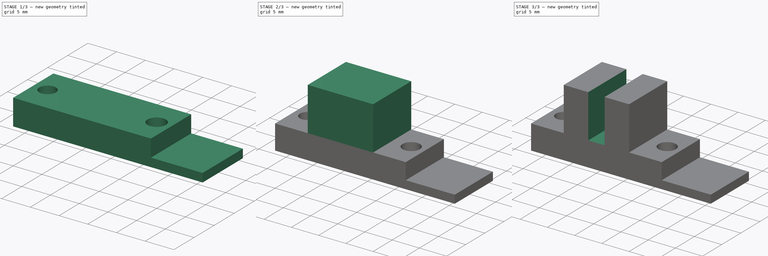
[diagram: build sequence overview — one tinted view per stage of 3, left to right]
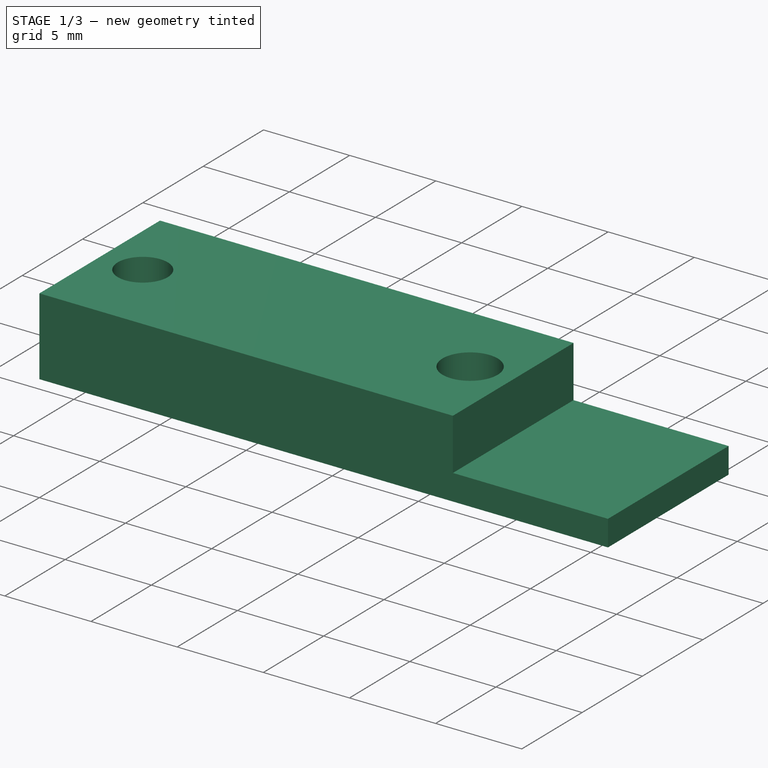
[diagram: stage 1 of 3 — iso view after this stage's code; geometry added in this stage tinted green]
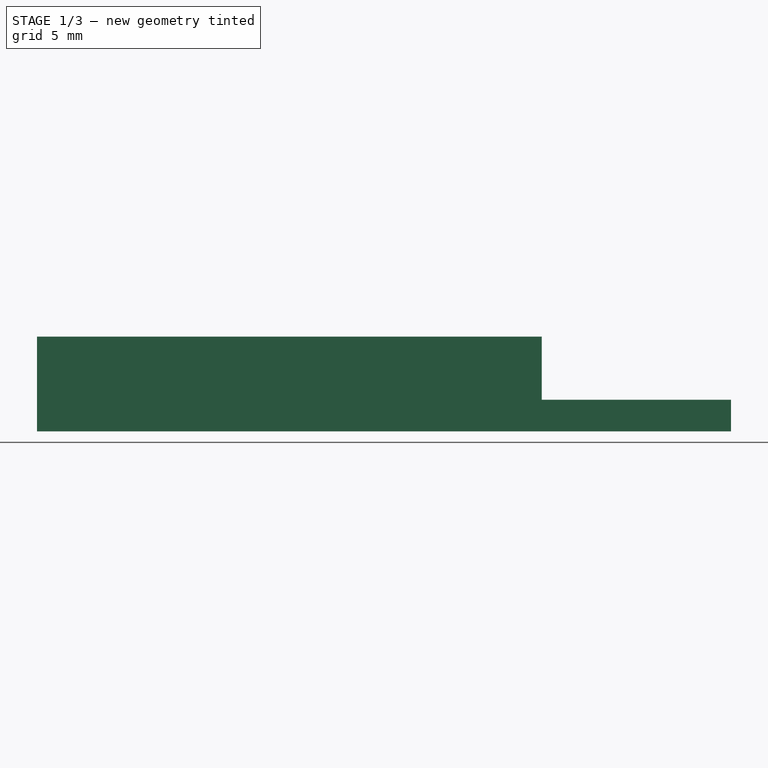
[diagram: stage 1 of 3 — front view after this stage's code; geometry added in this stage tinted green]
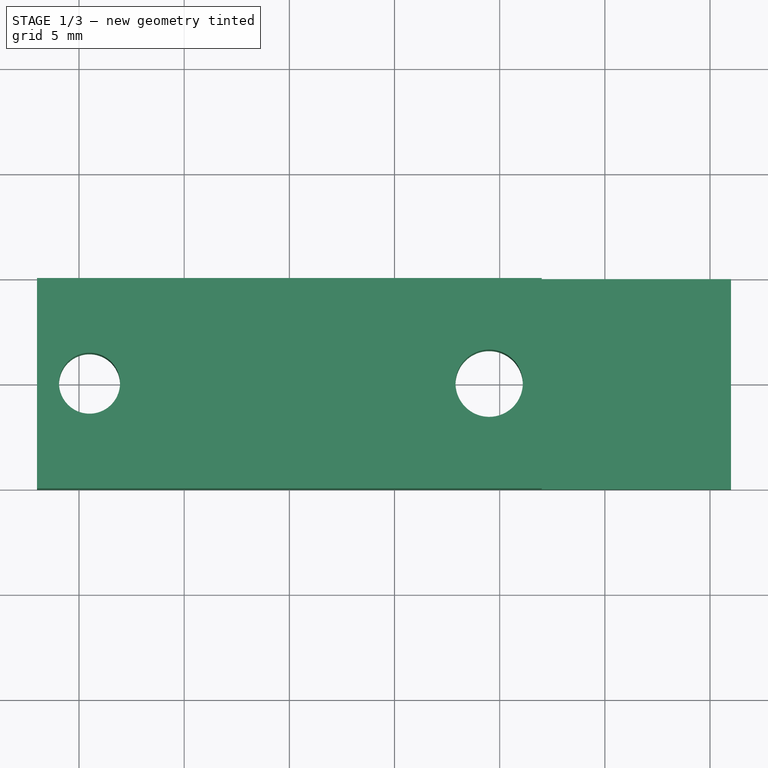
[diagram: stage 1 of 3 — top view after this stage's code; geometry added in this stage tinted green]
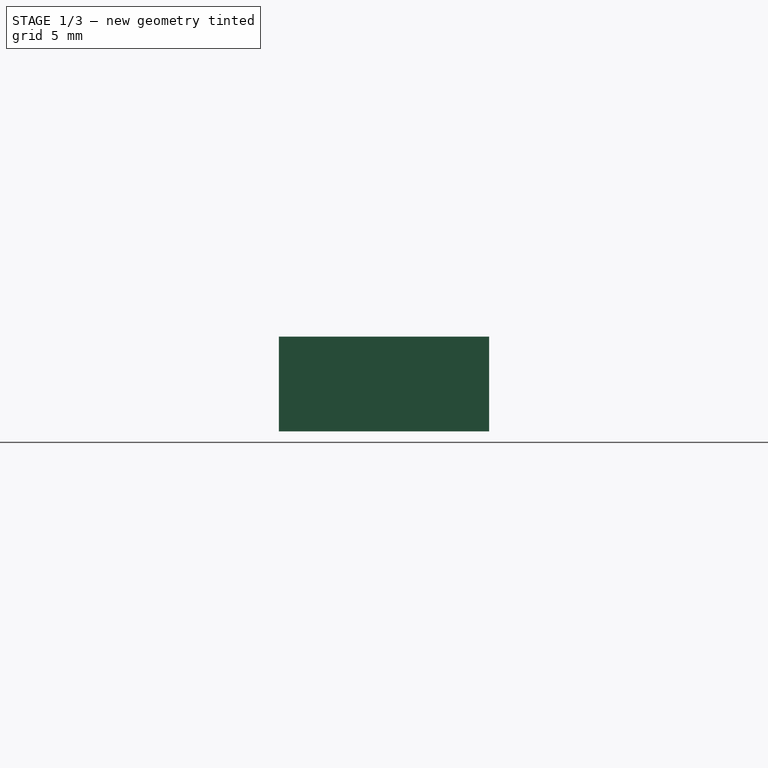
[diagram: stage 1 of 3 — right view after this stage's code; geometry added in this stage tinted green]
FCSTD DOCUMENT  (FreeCAD 0.18R15441 (Git))
Label: OpticalEndstop
License: All rights reserved
LicenseURL: http://en.wikipedia.org/wiki/All_rights_reserved
objects: Sketcher::SketchObject×4, PartDesign::Pad×3, PartDesign::Plane×1, PartDesign::Pocket×1, PartDesign::Body×1, Part::FeaturePython×1, App::Part×1
note: 15 computed .brp shape members not serialized (recipe doc carries the construction recipe); baked Part::Feature solids carry a one-line shape summary decoded from their .brp

FEATURE [Sketcher::SketchObject] Sketch  label="PCBSketch"
  MapMode = 5
  Support = -> [XY_Plane001]
  sketch-geometry (6):
    g0: LineSegment StartX=-12 StartY=5 StartZ=0 EndX=21 EndY=5 EndZ=0
    g1: LineSegment StartX=21 StartY=5 StartZ=0 EndX=21 EndY=-5 EndZ=0
    g2: LineSegment StartX=21 StartY=-5 StartZ=0 EndX=-12 EndY=-5 EndZ=0
    g3: LineSegment StartX=-12 StartY=-5 StartZ=0 EndX=-12 EndY=5 EndZ=0
    g4: Circle CenterX=-9.5 CenterY=0 CenterZ=0 NormalX=0 NormalY=0 NormalZ=1 AngleXU=0 Radius=1.45
    g5: Circle CenterX=9.5 CenterY=0 CenterZ=0 NormalX=0 NormalY=0 NormalZ=1 AngleXU=0 Radius=1.6
  constraints (16):
    c: Coincident(g0,g1)
    c: Coincident(g1,g2)
    c: Coincident(g2,g3)
    c: Coincident(g3,g0)
    c: Horizontal(g0)
    c: Horizontal(g2)
    c: Vertical(g1)
    c: Symmetric(g0,g2,g-1)
    c: DistanceX(g-2,g0) = -12
    c: Distance(g0) = 33
    c: Distance(g3) = 10
    c: PointOnObject(g4,g-1)
    c: Symmetric(g4,g5,g-2)
    c: Distance(g4,g5) = 19
    c: Radius(g4) = 1.45
    c: Radius(g5) = 1.6
FEATURE [PartDesign::Pad] Pad  label="PCBPad"
  Length = 1.5
  Length2 = 100
  Profile = -> Sketch
  Type = 0
FEATURE [Sketcher::SketchObject] Sketch001  label="SensorBaseSketch"
  ExternalGeometry = -> [Sketch]
  MapMode = 5
  Support = -> [XY_Plane001]
  sketch-geometry (6):
    g0: LineSegment StartX=-12 StartY=5 StartZ=0 EndX=12 EndY=5 EndZ=0
    g1: LineSegment StartX=12 StartY=5 StartZ=0 EndX=12 EndY=-5 EndZ=0
    g2: LineSegment StartX=12 StartY=-5 StartZ=0 EndX=-12 EndY=-5 EndZ=0
    g3: LineSegment StartX=-12 StartY=-5 StartZ=0 EndX=-12 EndY=5 EndZ=0
    g4: Circle CenterX=-9.5 CenterY=0 CenterZ=0 NormalX=0 NormalY=0 NormalZ=1 AngleXU=0 Radius=1.45
    g5: Circle CenterX=9.5 CenterY=0 CenterZ=0 NormalX=0 NormalY=0 NormalZ=1 AngleXU=0 Radius=1.6
  constraints (13):
    c: Coincident(g0,g1)
    c: Coincident(g1,g2)
    c: Coincident(g2,g3)
    c: Coincident(g3,g0)
    c: Horizontal(g2)
    c: Vertical(g1)
    c: Coincident(g0,g-3)
    c: Symmetric(g0,g0,g-2)
    c: Coincident(g2,g-3)
    c: Coincident(g4,g-4)
    c: Coincident(g5,g-5)
    c: Equal(g4,g-4)
    c: Equal(g5,g-5)
FEATURE [PartDesign::Pad] Pad001  label="SensorBasePad"
  BaseFeature = -> Pad
  Length = 4.5
  Length2 = 100
  Profile = -> Sketch001
  Type = 0
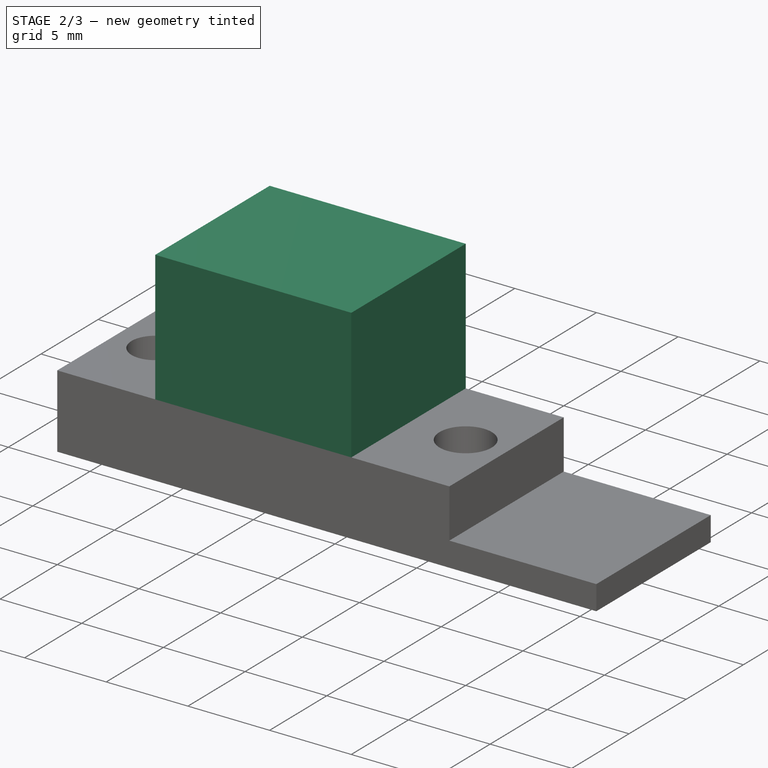
[diagram: stage 2 of 3 — iso view after this stage's code; geometry added in this stage tinted green]
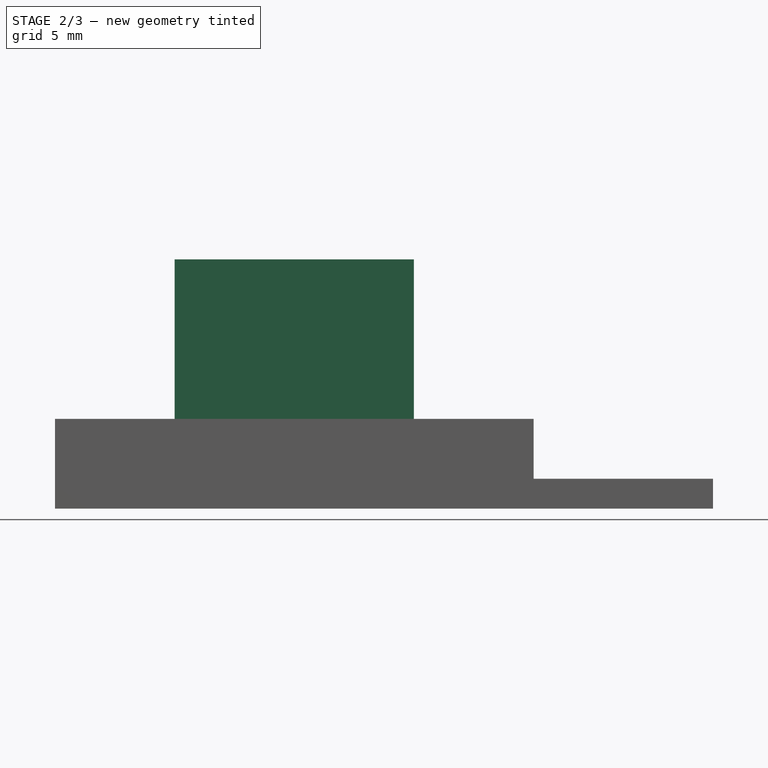
[diagram: stage 2 of 3 — front view after this stage's code; geometry added in this stage tinted green]
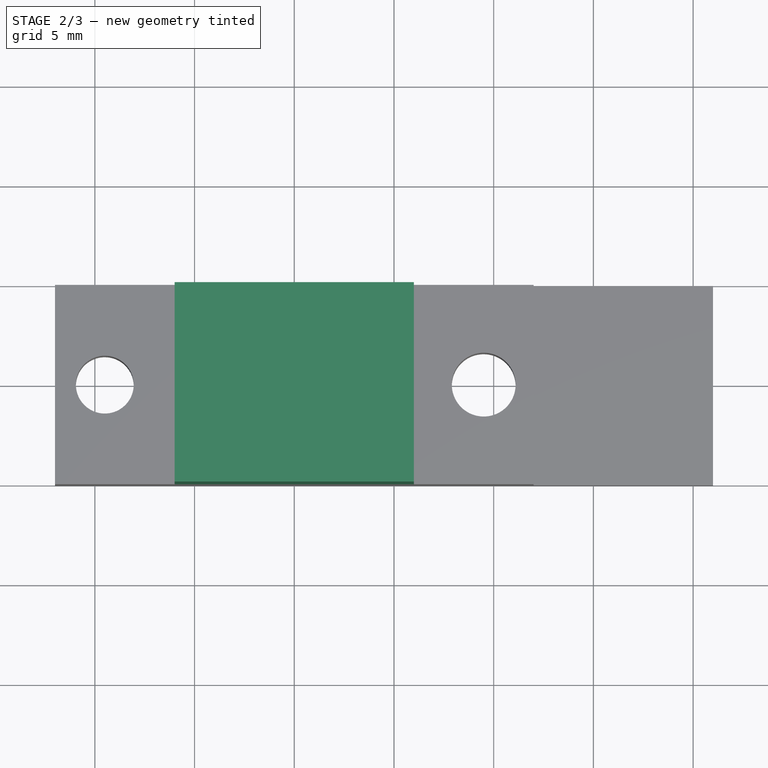
[diagram: stage 2 of 3 — top view after this stage's code; geometry added in this stage tinted green]
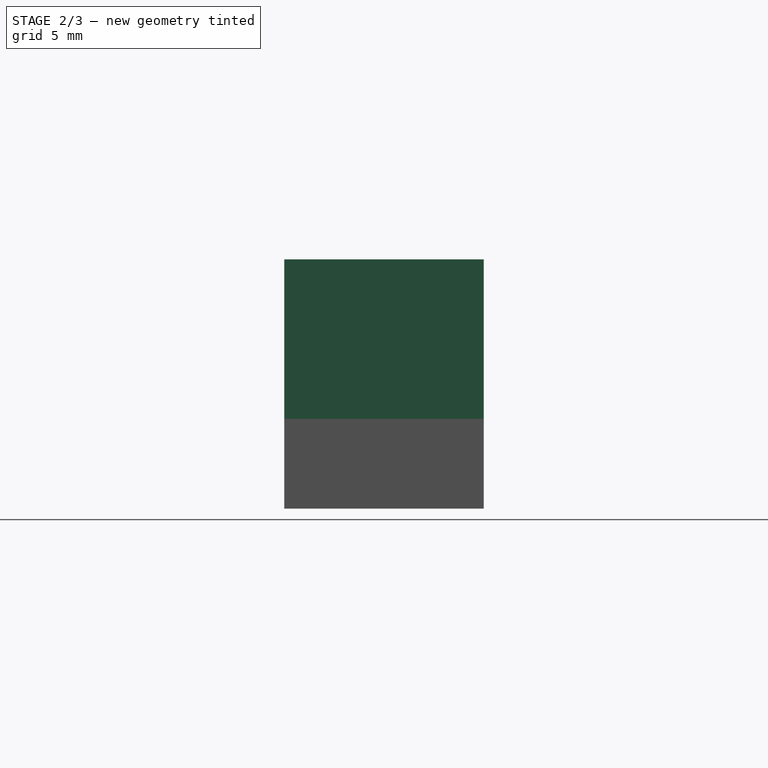
[diagram: stage 2 of 3 — right view after this stage's code; geometry added in this stage tinted green]
FEATURE [Sketcher::SketchObject] Sketch002  label="SensorGateSketch"
  ExternalGeometry = -> [Sketch]
  MapMode = 5
  Support = -> [XY_Plane001]
  sketch-geometry (4):
    g0: LineSegment StartX=-6 StartY=5 StartZ=0 EndX=6 EndY=5 EndZ=0
    g1: LineSegment StartX=6 StartY=5 StartZ=0 EndX=6 EndY=-5 EndZ=0
    g2: LineSegment StartX=6 StartY=-5 StartZ=0 EndX=-6 EndY=-5 EndZ=0
    g3: LineSegment StartX=-6 StartY=-5 StartZ=0 EndX=-6 EndY=5 EndZ=0
  constraints (10):
    c: Coincident(g0,g1)
    c: Coincident(g1,g2)
    c: Coincident(g2,g3)
    c: Coincident(g3,g0)
    c: Horizontal(g2)
    c: Vertical(g1)
    c: Symmetric(g0,g0,g-2)
    c: Symmetric(g0,g2,g-1)
    c: Equal(g3,g-3)
    c: Distance(g0) = 12
FEATURE [PartDesign::Pad] Pad002  label="SensorGatePad"
  BaseFeature = -> Pad001
  Length = 12.5
  Length2 = 100
  Profile = -> Sketch002
  Type = 0
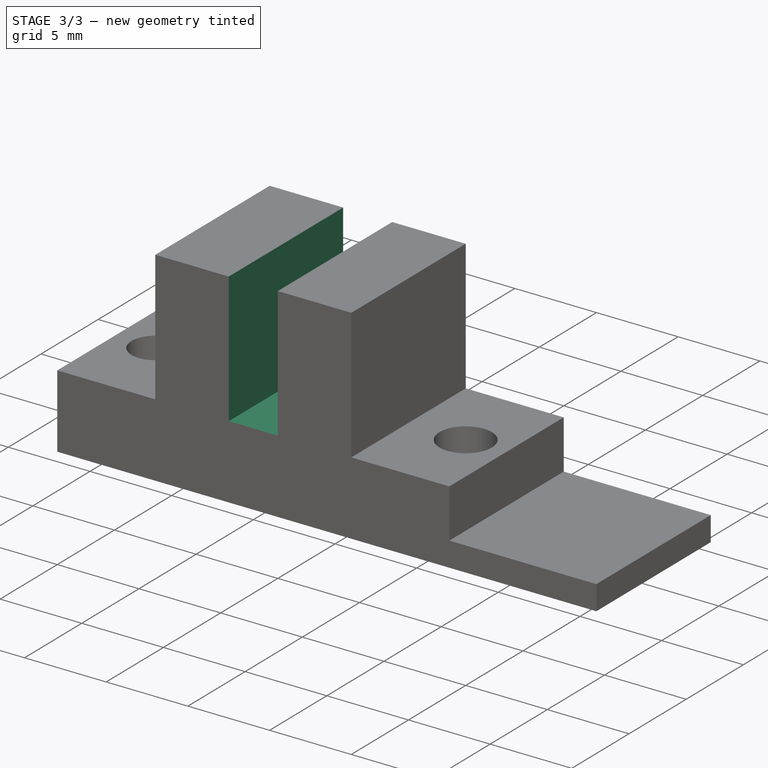
[diagram: stage 3 of 3 — iso view after this stage's code; geometry added in this stage tinted green]
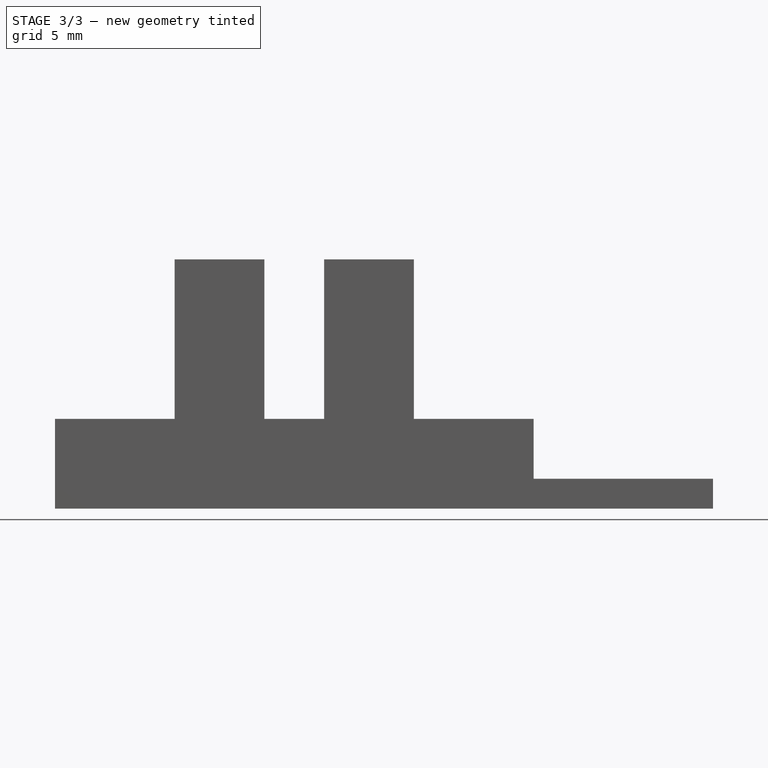
[diagram: stage 3 of 3 — front view after this stage's code; geometry added in this stage tinted green]
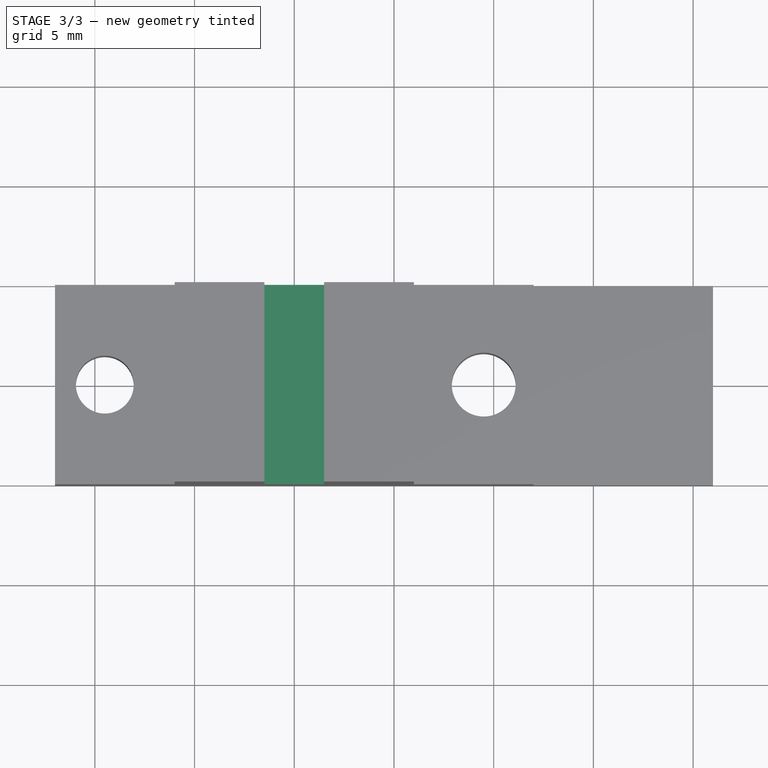
[diagram: stage 3 of 3 — top view after this stage's code; geometry added in this stage tinted green]
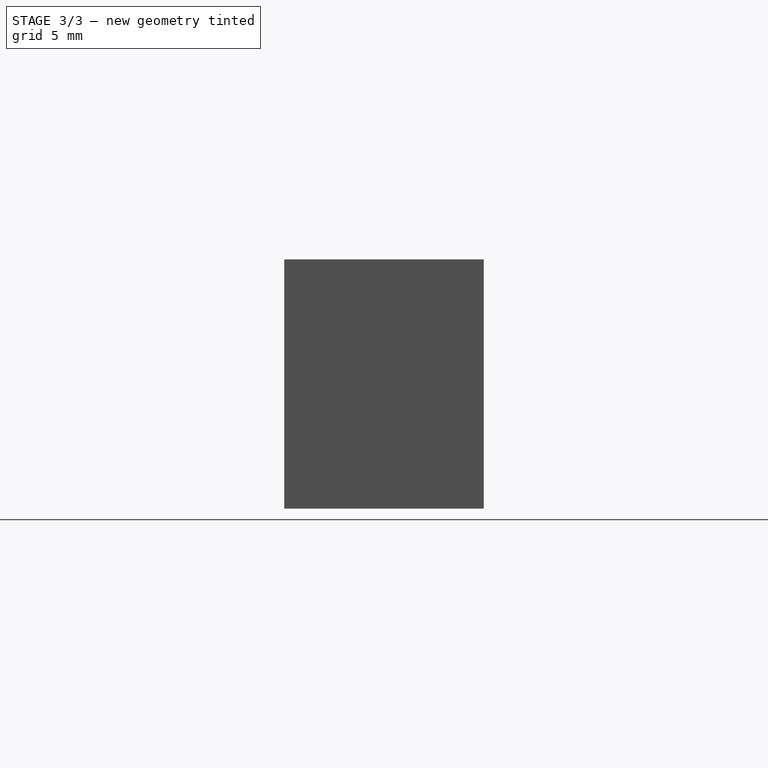
[diagram: stage 3 of 3 — right view after this stage's code; geometry added in this stage tinted green]
FEATURE [PartDesign::Plane] DatumPlane  label="SensorGateCutPlane"
  AttachmentOffset = pos=(0,0,4.5) rot=(0,0,1;0rad)
  Length = 38.1381
  MapMode = 5
  Placement = pos=(0,0,4.5) rot=(0,0,1;0rad)
  ResizeMode = 0
  Support = -> [XY_Plane001]
  Width = 25.1381
FEATURE [Sketcher::SketchObject] Sketch003  label="SensorGateCutSketch"
  MapMode = 5
  Placement = pos=(0,0,4.5) rot=(0,0,1;0rad)
  Support = -> [DatumPlane]
  sketch-geometry (4):
    g0: LineSegment StartX=-1.5 StartY=10 StartZ=0 EndX=1.5 EndY=10 EndZ=0
    g1: LineSegment StartX=1.5 StartY=10 StartZ=0 EndX=1.5 EndY=-10 EndZ=0
    g2: LineSegment StartX=1.5 StartY=-10 StartZ=0 EndX=-1.5 EndY=-10 EndZ=0
    g3: LineSegment StartX=-1.5 StartY=-10 StartZ=0 EndX=-1.5 EndY=10 EndZ=0
  constraints (10):
    c: Coincident(g0,g1)
    c: Coincident(g1,g2)
    c: Coincident(g2,g3)
    c: Coincident(g3,g0)
    c: Horizontal(g2)
    c: Vertical(g1)
    c: Symmetric(g0,g2,g-1)
    c: Symmetric(g0,g0,g-2)
    c: Distance(g0) = 3
    c: Distance(g3) = 20
FEATURE [PartDesign::Pocket] Pocket  label="SensorGateCutPocket"
  BaseFeature = -> Pad002
  Length = 5
  Length2 = 100
  Profile = -> Sketch003
  Reversed = true
  Type = 1
FEATURE [PartDesign::Body] Body  label="OpticalEndstopBody"
  Group = -> [Sketch,Pad,Sketch001,Pad001,Sketch002,Pad002,DatumPlane,Sketch003,Pocket]
  Origin = -> Origin001
  Tip = -> Pocket
FEATURE [Part::FeaturePython] refine  label="OpticalEndstop_Refined"  # WARN: FeaturePython — macro-defined, semantics opaque (R4)
  Base = -> Body
FEATURE [App::Part] Part  label="OpticalEndstopPart"
  Group = -> [Body,refine]
  License = CC BY 3.0
  LicenseURL = http://creativecommons.org/licenses/by/3.0/
  Origin = -> Origin
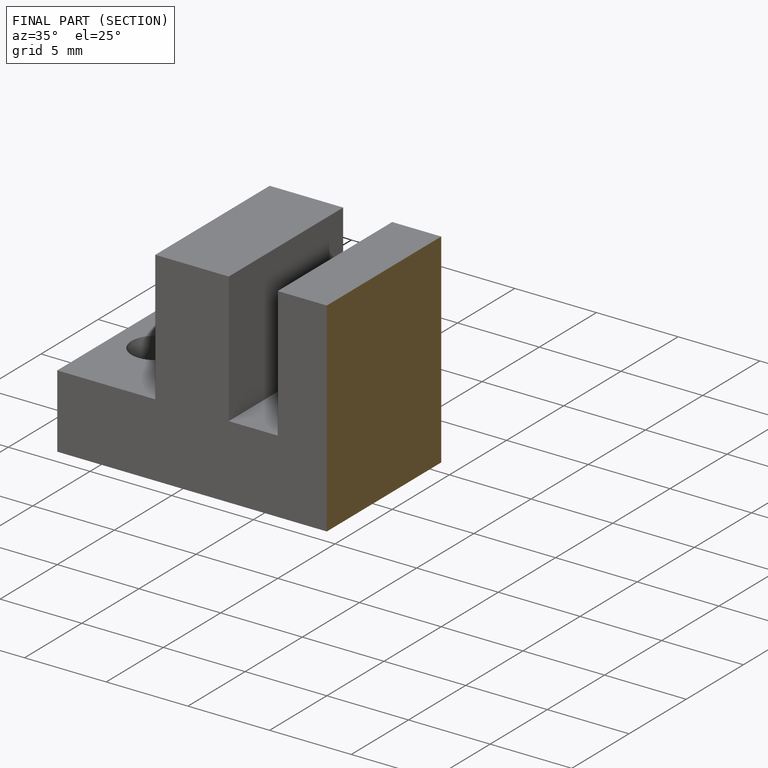
[diagram: finished part — half-section view (interior)]
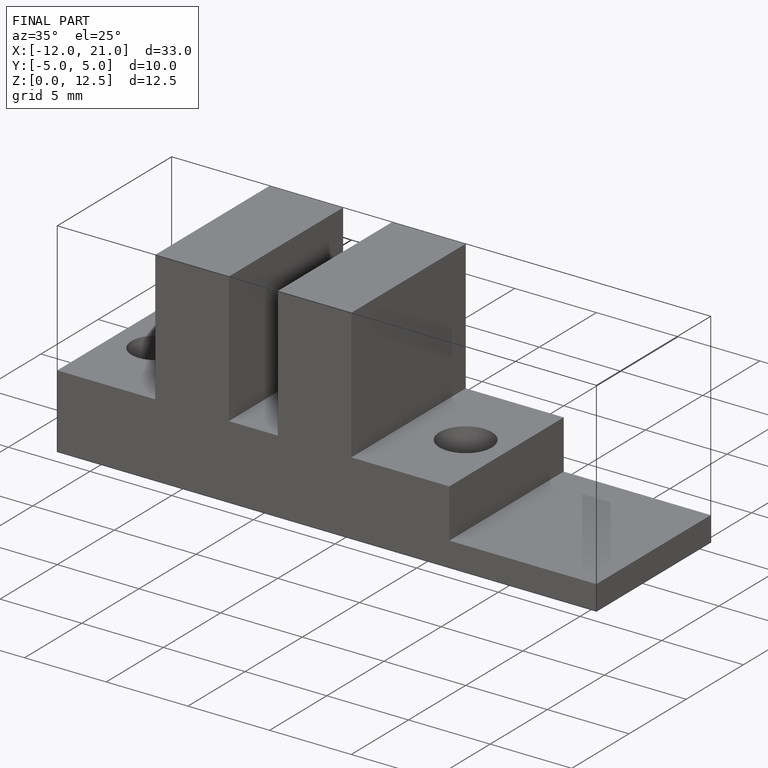
[diagram: finished part — iso view with bounding-box wireframe]
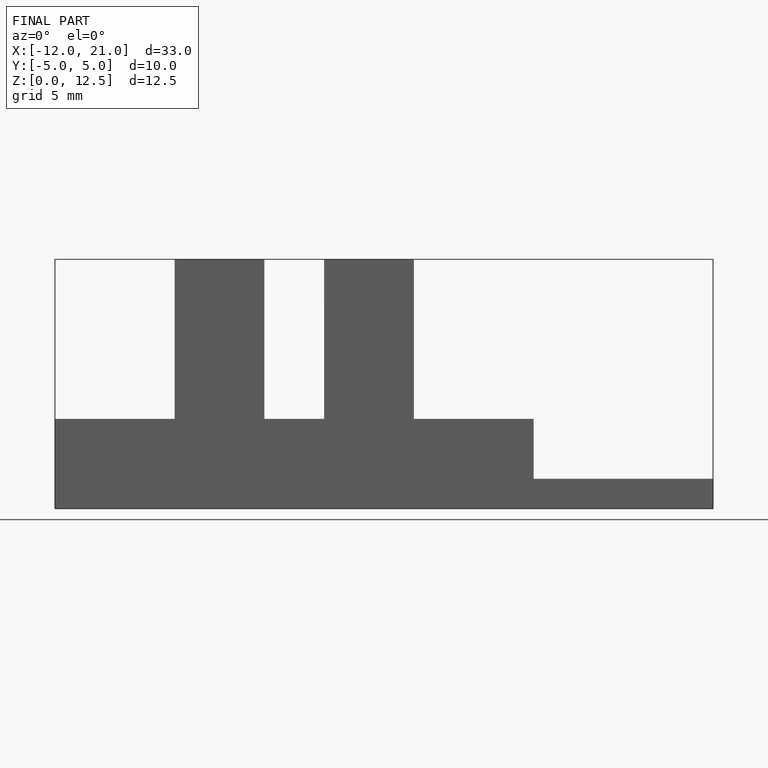
[diagram: finished part — front view with bounding-box wireframe]
